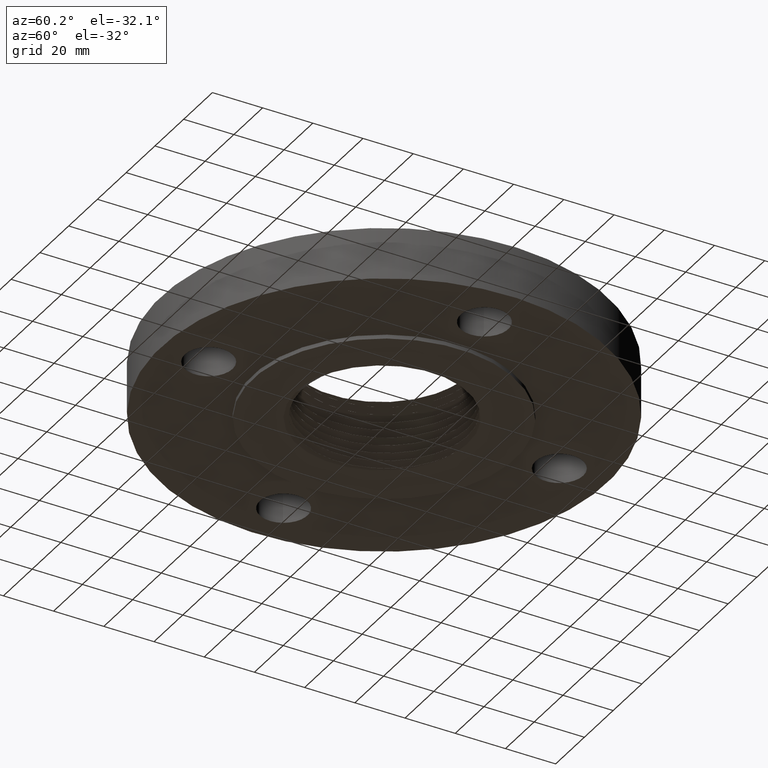
[diagram: clean part render]
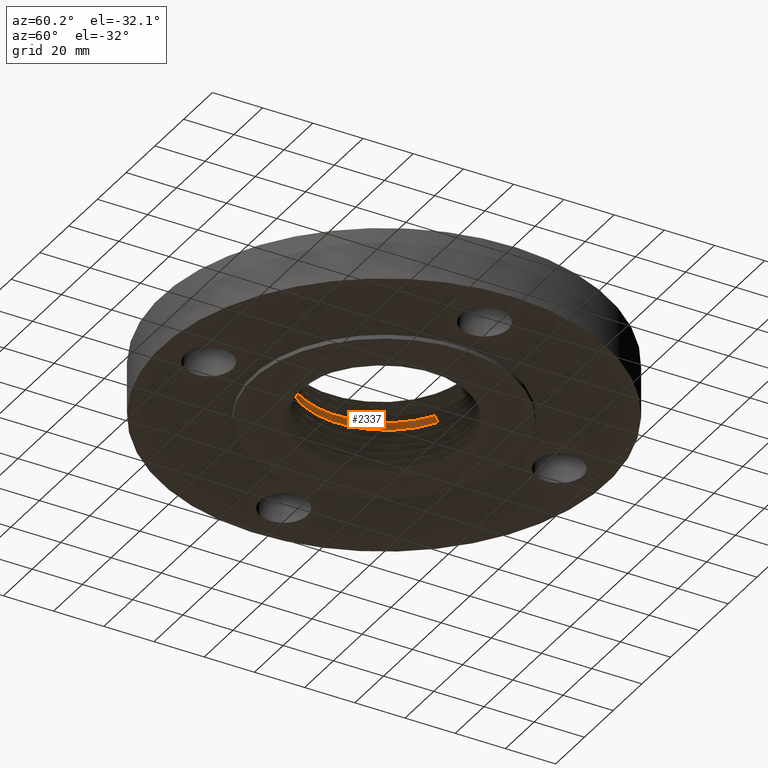
[diagram: same view with one face highlighted and labeled with its STEP entity id]
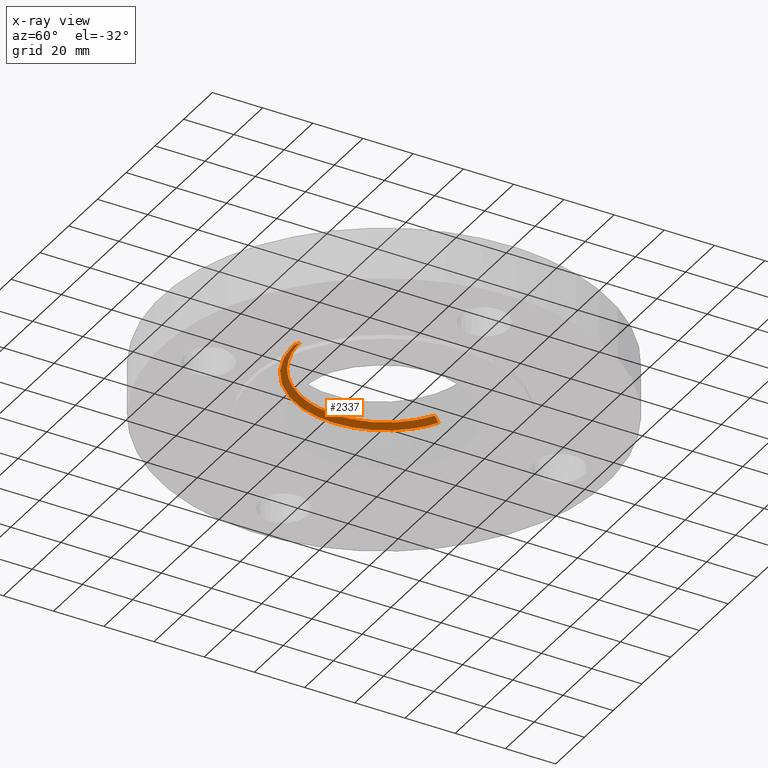
[diagram: x-ray of the same camera — body ghosted, the highlighted face saturated]
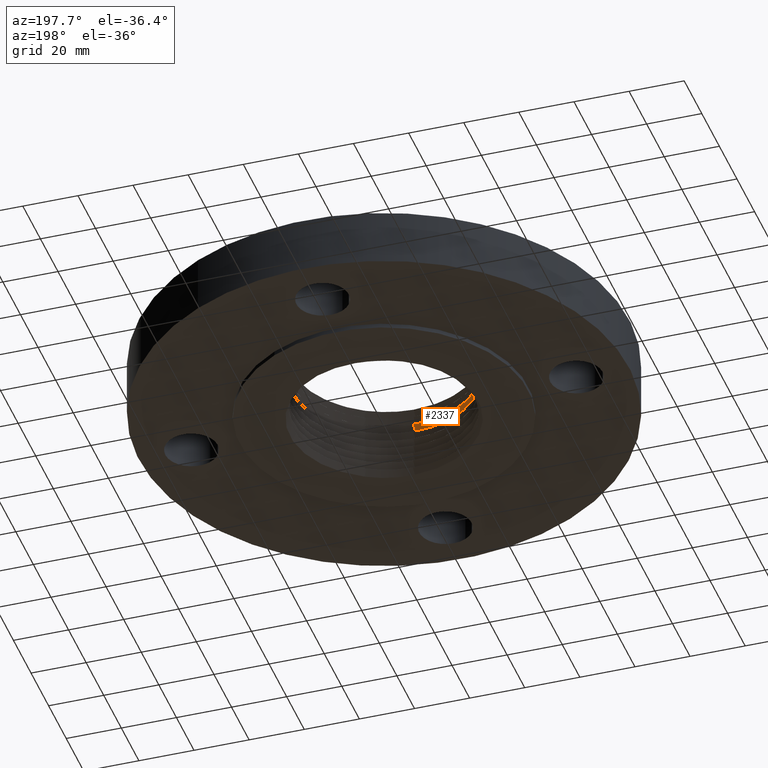
[diagram: same view with one face highlighted and labeled with its STEP entity id]
A machine part, auxiliary view. The second image highlights one B-rep face of the part: STEP entity #2337.
The next image is the same camera in x-ray: the body ghosted, the highlighted face saturated — about 24% of this face is hidden behind the body in this view.
A second angle (auxiliary view) of the same face is appended — the face is thin or edge-on in the first view.
In plain terms, the highlighted face is a freeform B-spline surface patch.
Its self-contained STEP definition (entity closure, byte-faithful):
#2116=CARTESIAN_POINT('Vertex',(-0.632379776725,1.15756341675,0.693125695345)) ;
#2125=CARTESIAN_POINT('Vertex',(-9.74504153061E-006,-1.32067874962,0.745678511578)) ;
#2129=CARTESIAN_POINT('Control Point',(-0.632379779171,1.15756342123,0.693125858623)) ;
#2130=CARTESIAN_POINT('Control Point',(-0.723119539136,1.10804758201,0.69468494804)) ;
#2131=CARTESIAN_POINT('Control Point',(-0.809010864335,1.04964164723,0.696244000143)) ;
#2132=CARTESIAN_POINT('Control Point',(-0.890362469548,0.982058630078,0.697828560535)) ;
#2133=CARTESIAN_POINT('Control Point',(-1.03922573866,0.829865313704,0.701023094537)) ;
#2134=CARTESIAN_POINT('Control Point',(-1.15488200908,0.651122125387,0.70421735307)) ;
#2135=CARTESIAN_POINT('Control Point',(-1.20288291492,0.556874360124,0.705801637994)) ;
#2136=CARTESIAN_POINT('Control Point',(-1.29232646677,0.329677905255,0.70946540655)) ;
#2137=CARTESIAN_POINT('Control Point',(-1.32797138226,0.0871275047397,0.713129489012)) ;
#2138=CARTESIAN_POINT('Control Point',(-1.32977577756,-0.0541456849016,0.715240003049)) ;
#2139=CARTESIAN_POINT('Control Point',(-1.3045090044,-0.263435590422,0.718396396483)) ;
#2140=CARTESIAN_POINT('Control Point',(-1.23923322431,-0.462330413409,0.721542550473)) ;
#2141=CARTESIAN_POINT('Control Point',(-1.21314439249,-0.527162347682,0.722591190598)) ;
#2142=CARTESIAN_POINT('Control Point',(-1.15238079594,-0.653209740073,0.724691721386)) ;
#2143=CARTESIAN_POINT('Control Point',(-1.07556452471,-0.770145643019,0.726792450066)) ;
#2144=CARTESIAN_POINT('Control Point',(-1.03340458398,-0.825855651982,0.727841288083)) ;
#2145=CARTESIAN_POINT('Control Point',(-0.942430692938,-0.931005062292,0.72993212245)) ;
#2146=CARTESIAN_POINT('Control Point',(-0.838471740291,-1.02336158511,0.732025728614)) ;
#2147=CARTESIAN_POINT('Control Point',(-0.783321349875,-1.06625156848,0.733077158331)) ;
#2148=CARTESIAN_POINT('Control Point',(-0.667378053826,-1.14461571882,0.735184274504)) ;
#2149=CARTESIAN_POINT('Control Point',(-0.542081827666,-1.20705709107,0.737289928977)) ;
#2150=CARTESIAN_POINT('Control Point',(-0.477567267555,-1.23400511773,0.738339896993)) ;
#2151=CARTESIAN_POINT('Control Point',(-0.345655019622,-1.27922233236,0.740433624053)) ;
#2152=CARTESIAN_POINT('Control Point',(-0.208885678624,-1.30675809495,0.742527274602)) ;
#2153=CARTESIAN_POINT('Control Point',(-0.139541074606,-1.31600504786,0.743576580569)) ;
#2154=CARTESIAN_POINT('Control Point',(-0.0697770731234,-1.32064539261,0.744627554669)) ;
#2155=CARTESIAN_POINT('Control Point',(-9.7450415289E-006,-1.32067874962,0.745678511578)) ;
#2281=CARTESIAN_POINT('Vertex',(-9.19820981796E-007,-1.41740380978,0.68093825884)) ;
#2285=CARTESIAN_POINT('Control Point',(-9.19820981765E-007,-1.41740380978,0.68093825884)) ;
#2286=CARTESIAN_POINT('Control Point',(-9.74504153052E-006,-1.32067874962,0.745678511578)) ;
#2296=CARTESIAN_POINT('Control Point',(-9.19820984036E-007,-1.41740380978,0.68093825884)) ;
#2297=CARTESIAN_POINT('Control Point',(-9.86128050018E-006,-1.31940476203,0.74653122005)) ;
#2298=CARTESIAN_POINT('Control Point',(-0.499958018126,-1.41718419641,0.673920971092)) ;
#2299=CARTESIAN_POINT('Control Point',(-0.465400160446,-1.31918199477,0.739513932282)) ;
#2300=CARTESIAN_POINT('Control Point',(-0.999820945039,-1.19652882434,0.666902271368)) ;
#2301=CARTESIAN_POINT('Control Point',(-0.93068800202,-1.11376419049,0.732495227543)) ;
#2302=CARTESIAN_POINT('Control Point',(-1.36340473984,-0.756256423384,0.659954457593)) ;
#2303=CARTESIAN_POINT('Control Point',(-1.26910380071,-0.703926948769,0.725547418115)) ;
#2304=CARTESIAN_POINT('Control Point',(-1.54634298724,0.0422500675069,0.649428960329)) ;
#2305=CARTESIAN_POINT('Control Point',(-1.43935247368,0.0393452183819,0.715021921753)) ;
#2306=CARTESIAN_POINT('Control Point',(-1.24247880134,0.746964983043,0.638900295802)) ;
#2307=CARTESIAN_POINT('Control Point',(-1.1564881966,0.69528258103,0.704493256725)) ;
#2308=CARTESIAN_POINT('Control Point',(-1.09045428534,0.955150803045,0.635397315049)) ;
#2309=CARTESIAN_POINT('Control Point',(-1.01497651083,0.889054631409,0.700990269739)) ;
#2310=CARTESIAN_POINT('Control Point',(-0.897768565026,1.12292351349,0.631891554961)) ;
#2311=CARTESIAN_POINT('Control Point',(-0.835620694398,1.0452077454,0.697484516014)) ;
#2312=CARTESIAN_POINT('Control Point',(-0.67875143262,1.24244808432,0.628385442767)) ;
#2313=CARTESIAN_POINT('Control Point',(-0.63175937971,1.15645064003,0.693978403811)) ;
#2315=CARTESIAN_POINT('Control Point',(-9.19820984036E-007,-1.41740380978,0.68093825884)) ;
#2316=CARTESIAN_POINT('Control Point',(-0.499958018126,-1.41718419641,0.673920971092)) ;
#2317=CARTESIAN_POINT('Control Point',(-0.999820945039,-1.19652882434,0.666902271368)) ;
#2318=CARTESIAN_POINT('Control Point',(-1.36340473984,-0.756256423384,0.659954457593)) ;
#2319=CARTESIAN_POINT('Control Point',(-1.54634298724,0.0422500675069,0.649428960329)) ;
#2320=CARTESIAN_POINT('Control Point',(-1.24247880134,0.746964983043,0.638900295802)) ;
#2321=CARTESIAN_POINT('Control Point',(-1.09045428534,0.955150803045,0.635397315049)) ;
#2322=CARTESIAN_POINT('Control Point',(-0.897768565026,1.12292351349,0.631891554961)) ;
#2323=CARTESIAN_POINT('Control Point',(-0.67875143262,1.24244808432,0.628385442767)) ;
#2324=CARTESIAN_POINT('Vertex',(-0.67875143262,1.24244808432,0.628385442767)) ;
#2328=CARTESIAN_POINT('Control Point',(-0.67875143262,1.24244808432,0.628385442767)) ;
#2329=CARTESIAN_POINT('Control Point',(-0.632370276759,1.15756860747,0.693125694813)) ;
#2332=ORIENTED_EDGE('',*,*,#2287,.T.) ;
#2333=ORIENTED_EDGE('',*,*,#2326,.T.) ;
#2334=ORIENTED_EDGE('',*,*,#2330,.F.) ;
#2335=ORIENTED_EDGE('',*,*,#2156,.T.) ;
#2337=ADVANCED_FACE('PartBody',(#2336),#2295,.T.) ;
#2128=B_SPLINE_CURVE_WITH_KNOTS('',5,(#2129,#2130,#2131,#2132,#2133,#2134,#2135,#2136,#2137,#2138,#2139,#2140,#2141,#2142,#2143,#2144,#2145,#2146,#2147,#2148,#2149,#2150,#2151,#2152,#2153,#2154,#2155),.UNSPECIFIED.,.F.,.U.,(6,3,3,3,3,3,3,3,6),(0.,19.1850231836,38.3700463671,64.2802156233,77.1762885572,90.0723614911,102.962778492,115.853195492,128.79331758),.UNSPECIFIED.) ;
#2284=B_SPLINE_CURVE_WITH_KNOTS('',1,(#2285,#2286),.UNSPECIFIED.,.F.,.U.,(2,2),(-1.49764450472,1.45870574867),.UNSPECIFIED.) ;
#2314=B_SPLINE_CURVE_WITH_KNOTS('',5,(#2315,#2316,#2317,#2318,#2319,#2320,#2321,#2322,#2323),.UNSPECIFIED.,.F.,.U.,(6,3,6),(0.,61.303237263,91.8960101786),.UNSPECIFIED.) ;
#2327=B_SPLINE_CURVE_WITH_KNOTS('',1,(#2328,#2329),.UNSPECIFIED.,.F.,.U.,(2,2),(-1.49764450472,1.45870572456),.UNSPECIFIED.) ;
#2295=B_SPLINE_SURFACE_WITH_KNOTS('',5,1,((#2296,#2297),(#2298,#2299),(#2300,#2301),(#2302,#2303),(#2304,#2305),(#2306,#2307),(#2308,#2309),(#2310,#2311),(#2312,#2313)),.UNSPECIFIED.,.F.,.F.,.U.,(6,3,6),(2,2),(0.,61.303237263,91.8960101786),(-1.49764450472,1.49764450472),.UNSPECIFIED.) ;
#2156=EDGE_CURVE('',#2117,#2126,#2128,.T.) ;
#2287=EDGE_CURVE('',#2126,#2282,#2284,.F.) ;
#2326=EDGE_CURVE('',#2282,#2325,#2314,.T.) ;
#2330=EDGE_CURVE('',#2117,#2325,#2327,.F.) ;
#2331=EDGE_LOOP('',(#2332,#2333,#2334,#2335)) ;
#2336=FACE_OUTER_BOUND('',#2331,.T.) ;
#2117=VERTEX_POINT('',#2116) ;
#2126=VERTEX_POINT('',#2125) ;
#2282=VERTEX_POINT('',#2281) ;
#2325=VERTEX_POINT('',#2324) ;